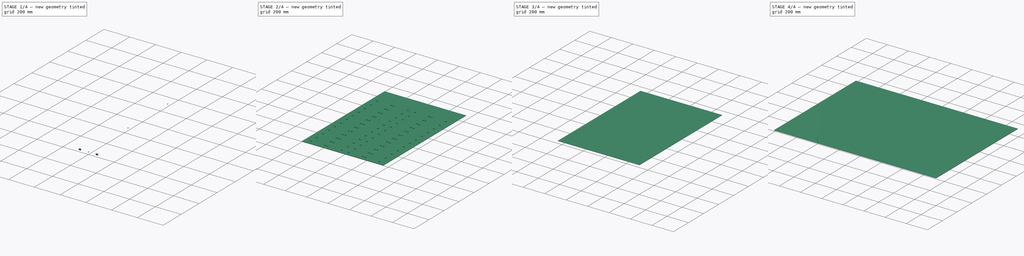
[diagram: build sequence overview — one tinted view per stage of 4, left to right]
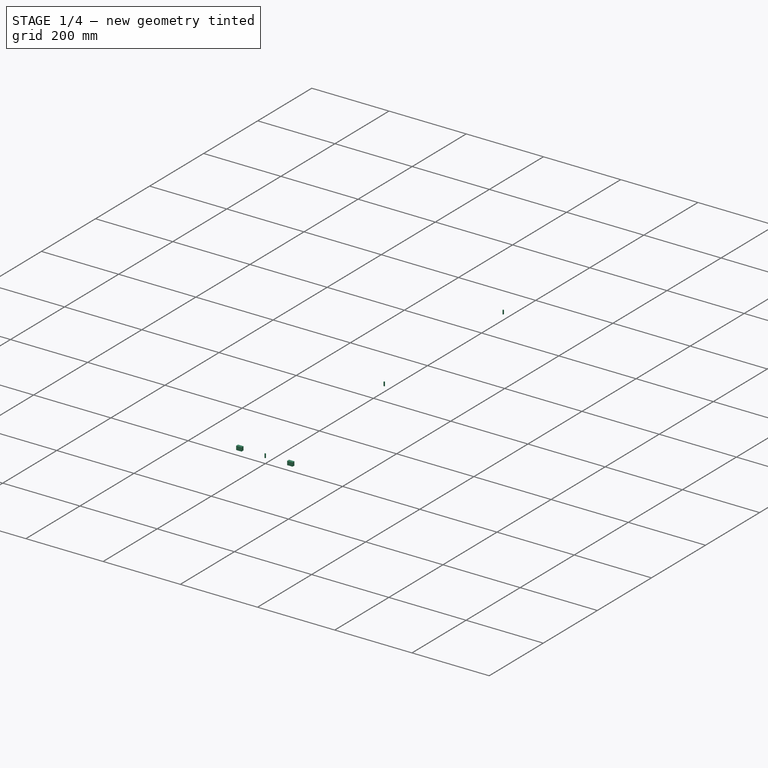
[diagram: stage 1 of 4 — iso view after this stage's code; geometry added in this stage tinted green]
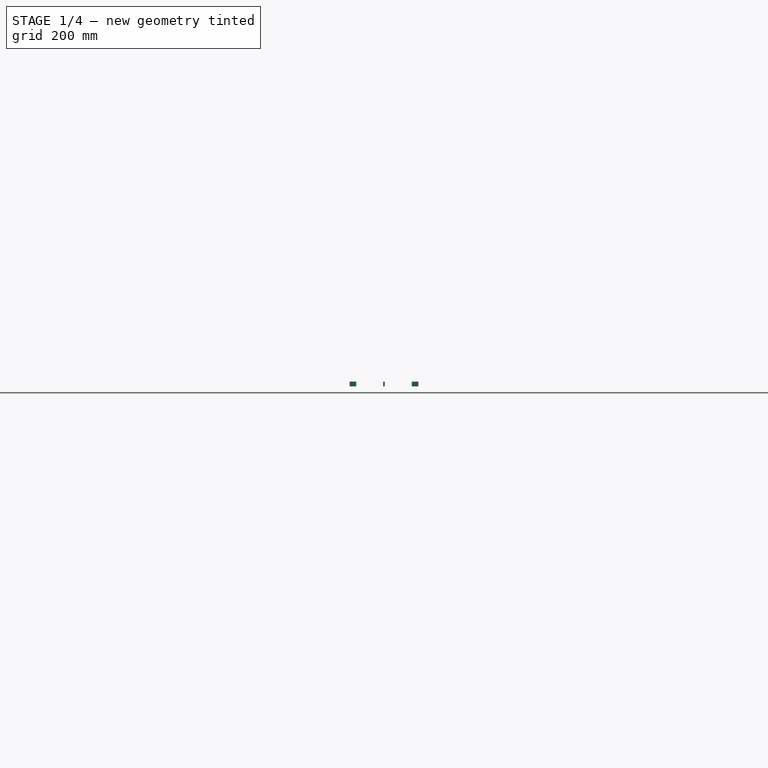
[diagram: stage 1 of 4 — front view after this stage's code; geometry added in this stage tinted green]
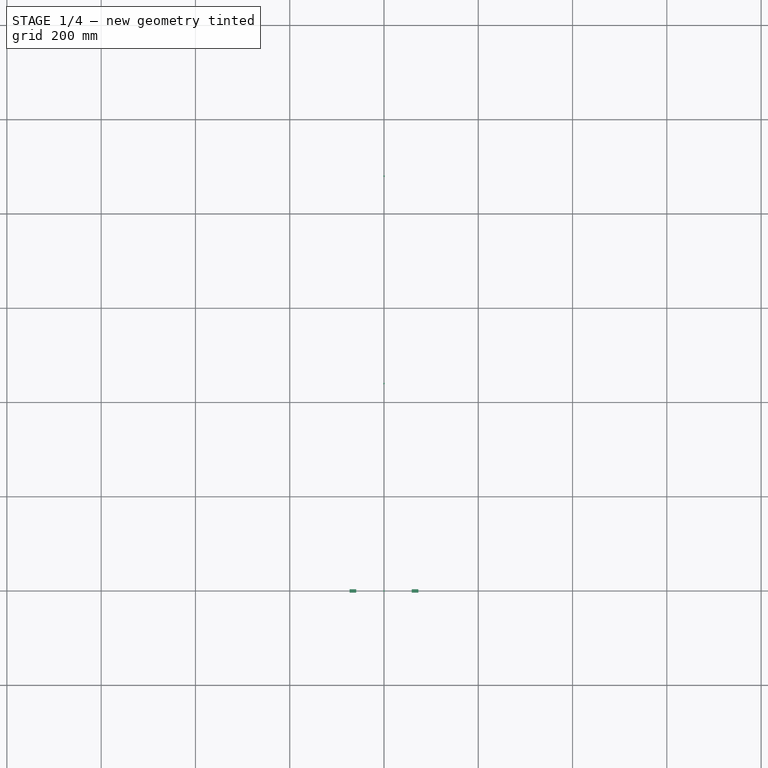
[diagram: stage 1 of 4 — top view after this stage's code; geometry added in this stage tinted green]
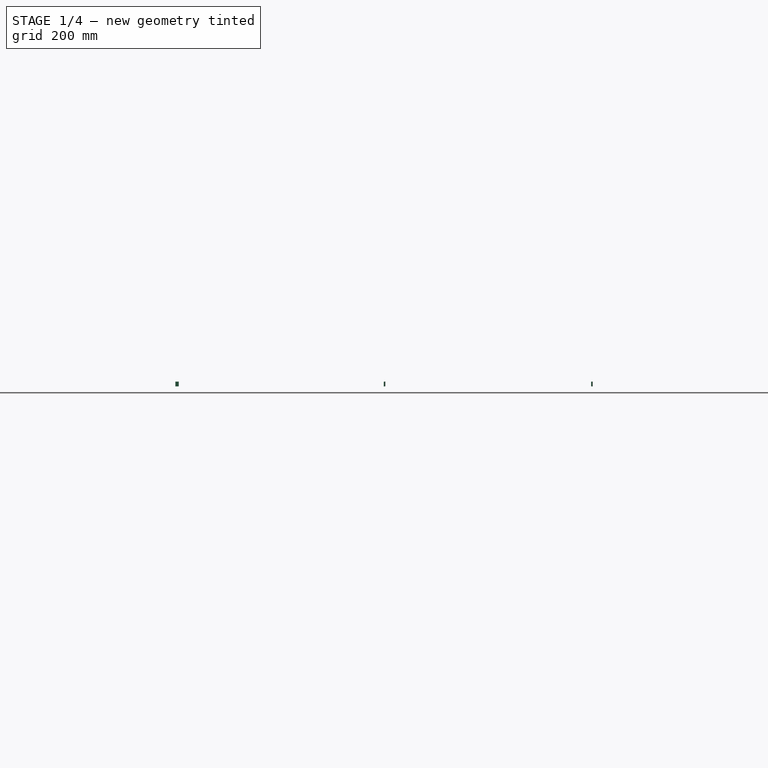
[diagram: stage 1 of 4 — right view after this stage's code; geometry added in this stage tinted green]
FCSTD DOCUMENT  (FreeCAD 0.22R36135 (Git))
Label: module_transport
License: All rights reserved
LicenseURL: http://en.wikipedia.org/wiki/All_rights_reserved
objects: Part::FeaturePython×11, Path::FeaturePython×4, Sketcher::SketchObject×3, App::DocumentObjectGroup×3, PartDesign::Body×2, App::Link×1, PartDesign::SubShapeBinder×1, PartDesign::Pad×1, Part::Extrusion×1, App::FeaturePython×1, Part::Part2DObjectPython×1, Part::Cylinder×1, Part::Compound×1, PartDesign::Boolean×1
note: 25 computed .brp shape members not serialized (recipe doc carries the construction recipe); baked Part::Feature solids carry a one-line shape summary decoded from their .brp
EXTERNAL_REF file=module.FCStd obj=Sketch

FEATURE [PartDesign::Body] Body001
  Origin = -> Origin001
FEATURE [Part::FeaturePython] Clone  label="module_holes001"  # Draft clone (typed FeaturePython)
  AttacherType = Attacher::AttachEngine3D
  Fuse = false
  Objects = -> [Link]
  Scale = (1,1,1)
FEATURE [Sketcher::SketchObject] Sketch001
  ExternalGeometry = -> [Clone]
  FullyConstrained = true
  sketch-geometry (10):
    g0: LineSegment StartX=-73 StartY=-3.5 StartZ=0 EndX=-59 EndY=-3.5 EndZ=0
    g1: LineSegment StartX=-59 StartY=-3.5 StartZ=0 EndX=-59 EndY=3.5 EndZ=0
    g2: LineSegment StartX=-59 StartY=3.5 StartZ=0 EndX=-73 EndY=3.5 EndZ=0
    g3: LineSegment StartX=-73 StartY=3.5 StartZ=0 EndX=-73 EndY=-3.5 EndZ=0
    g4: GeomPoint X=-66 Y=0 Z=0
    g5: LineSegment StartX=73 StartY=-3.5 StartZ=0 EndX=59 EndY=-3.5 EndZ=0
    g6: LineSegment StartX=59 StartY=-3.5 StartZ=0 EndX=59 EndY=3.5 EndZ=0
    g7: LineSegment StartX=59 StartY=3.5 StartZ=0 EndX=73 EndY=3.5 EndZ=0
    g8: LineSegment StartX=73 StartY=3.5 StartZ=0 EndX=73 EndY=-3.5 EndZ=0
    g9: GeomPoint X=66 Y=4e-16 Z=0
  constraints (24):
    c: Coincident(g0,g1)
    c: Coincident(g1,g2)
    c: Coincident(g2,g3)
    c: Coincident(g3,g0)
    c: Horizontal(g0)
    c: Horizontal(g2)
    c: Vertical(g1)
    c: Vertical(g3)
    c: Symmetric(g2,g0,g4)
    c: PointOnObject(g4,g-1)
    c: Coincident(g5,g6)
    c: Coincident(g6,g7)
    c: Coincident(g7,g8)
    c: Coincident(g8,g5)
    c: Horizontal(g5)
    c: Horizontal(g7)
    c: Vertical(g6)
    c: Vertical(g8)
    c: Symmetric(g7,g5,g9)
    c: Symmetric(g1,g6,g-2)
    c: Symmetric(g0,g5,g-2)
    c: PointOnObject(g-4,g0)
    c: DistanceX(g-4,g0) = 0.5
    c: DistanceX(g0,g-3) = 0.5
FEATURE [Part::Extrusion] Extrude
  Base = -> Sketch001
  Dir = (0,0,1)
  DirMode = 2
  FaceMakerClass = Part::FaceMakerBullseye
  LengthFwd = 10
  LengthRev = 0
  Solid = true
  Symmetric = false
FEATURE [Path::FeaturePython] __175mm_Endmill  label="3.175mm Endmill001"  # Path/CAM operation (typed FeaturePython)
  HorizFeed = 33.3333
  HorizRapid = 0
  SpindleDir = 0
  SpindleSpeed = 18000
  Tool = -> ToolBit
  ToolNumber = 1
  VertFeed = 16.6667
  VertRapid = 0
  expr: HorizRapid = SetupSheet.HorizRapid
  expr: VertRapid = SetupSheet.VertRapid
FEATURE [App::DocumentObjectGroup] Tools
  Group = -> [__175mm_Endmill]
FEATURE [Part::Part2DObjectPython] Rectangle  # Draft 2D object (typed FeaturePython)
  Area = 0
  ChamferSize = 0
  Columns = 1
  FilletRadius = 0
  Height = 200
  Length = 200
  MakeFace = false
  Rows = 1
FEATURE [Sketcher::SketchObject] Sketch002
  FullyConstrained = false
  sketch-geometry (2):
    g0: LineSegment StartX=0 StartY=1101.6 StartZ=0 EndX=1528.9 EndY=1101.6 EndZ=0
    g1: LineSegment StartX=761.6 StartY=1101.6 StartZ=0 EndX=761.6 EndY=0 EndZ=0
  constraints (4):
    c: PointOnObject(g0,g-2)
    c: Horizontal(g0)
    c: PointOnObject(g1,g0)
    c: PointOnObject(g1,g-1)
FEATURE [Path::FeaturePython] Engrave  # Path/CAM operation (typed FeaturePython)
  Active = true
  BaseShapes = -> [Sketch002]
  ClearanceHeight = 44
  CoolantMode = 0
  CycleTime = 00:10:52
  FinalDepth = 0
  OpFinalDepth = -3
  OpStartDepth = 3
  OpStockZMax = 4
  OpStockZMin = 0
  OpToolDiameter = 3.17
  SafeHeight = 7
  StartDepth = 20
  StartVertex = 0
  StepDown = 6
  ToolController = -> __175mm_Endmill
  expr: ClearanceHeight = OpStockZMax + SetupSheet.ClearanceHeightOffset
  expr: FinalDepth = 0
  expr: SafeHeight = <<Profile>>.SafeHeight
  expr: StartDepth = <<Profile>>.StartDepth
  expr: StepDown = <<Profile>>.StepDown
FEATURE [Part::FeaturePython] LinearArray002  # WARN: FeaturePython — macro-defined, semantics opaque (R4)
  Alignment = 0
  CellStart = A1
  Count = 3
  Dir = (0,1,0)
  DirIsDriven = true
  DistributionLaw = 0
  DrivenProperty = 1
  EndInclusive = true
  ExposePlacement = false
  GeneratorMode = 0
  MarkerShape = 1
  MarkerSize = 0
  NumElements = 3
  OrientMode = 1
  Point = (0,0,0)
  PointIsDriven = true
  Reverse = false
  SpanEnd = 880
  SpanStart = 0
  Step = 440
  Type = lattice2LinearArray.LinearArray
  VSGVersion = 1
  Values = 0.0 | 440.0 | 880.0
  ValuesSource = 2
  isLattice = 1
FEATURE [Part::Cylinder] Cylinder
  Angle = 360
  AttacherType = Attacher::AttachEngine3D
  FirstAngle = 0
  Height = 10
  Radius = 1.6
  SecondAngle = 0
FEATURE [Part::FeaturePython] Populate002  label="Populate LinearArray002 with Cylinder"  # WARN: FeaturePython — macro-defined, semantics opaque (R4)
  Copying = 0
  ExposePlacement = false
  MarkerShape = 1
  MarkerSize = 0
  NumElements = 0
  Object = -> Cylinder
  OutputCompounding = 1
  PlacementsTo = -> LinearArray002
  Referencing = 0
  Type = lattice2PopulateCopies.LatticePopulateCopies
  isLattice = 0
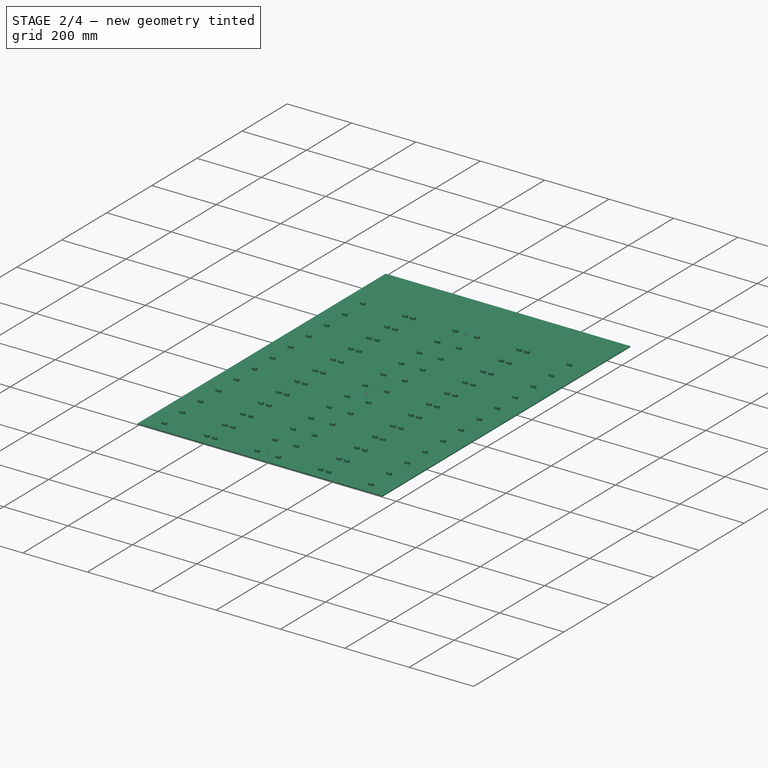
[diagram: stage 2 of 4 — iso view after this stage's code; geometry added in this stage tinted green]
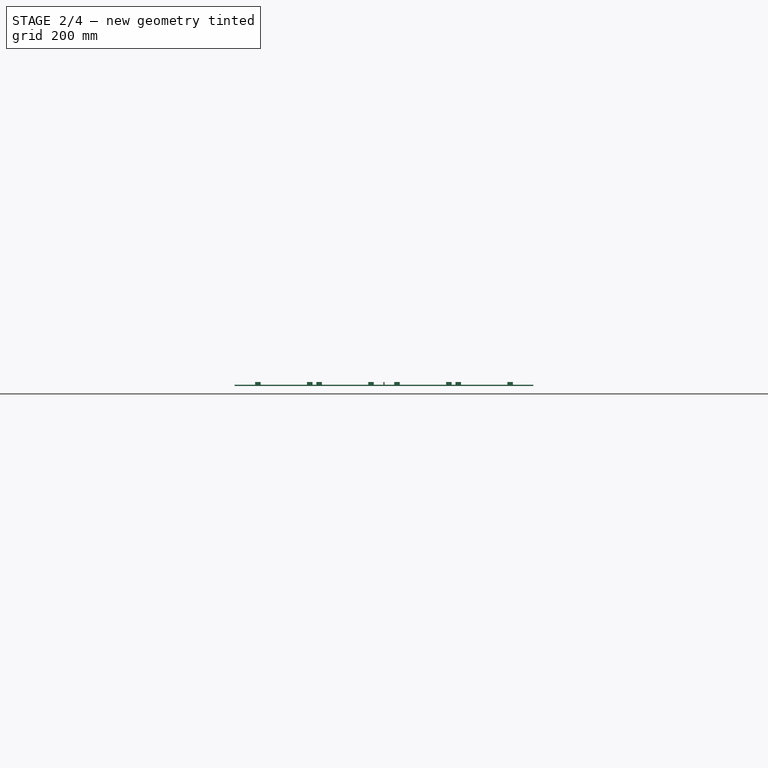
[diagram: stage 2 of 4 — front view after this stage's code; geometry added in this stage tinted green]
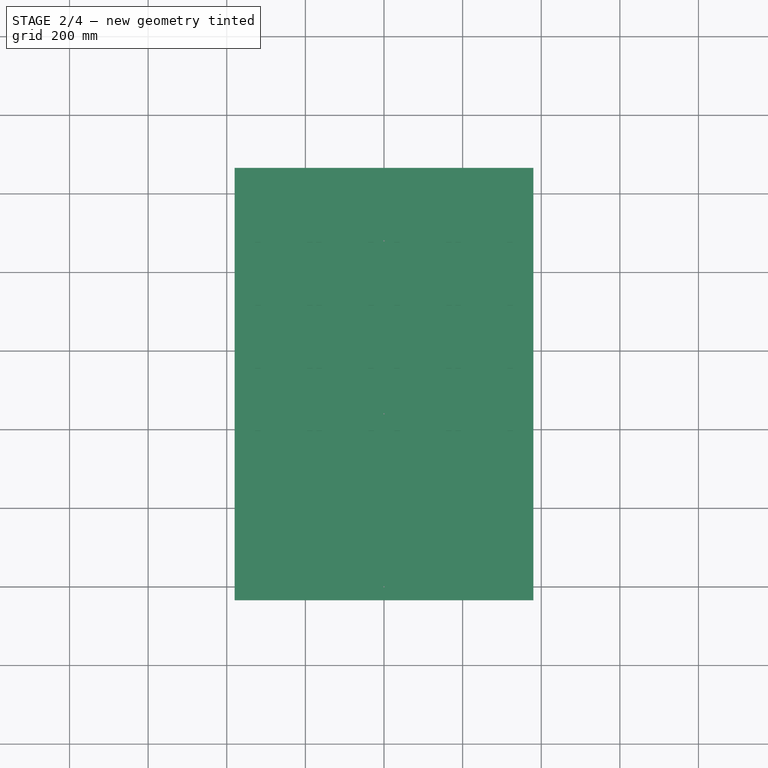
[diagram: stage 2 of 4 — top view after this stage's code; geometry added in this stage tinted green]
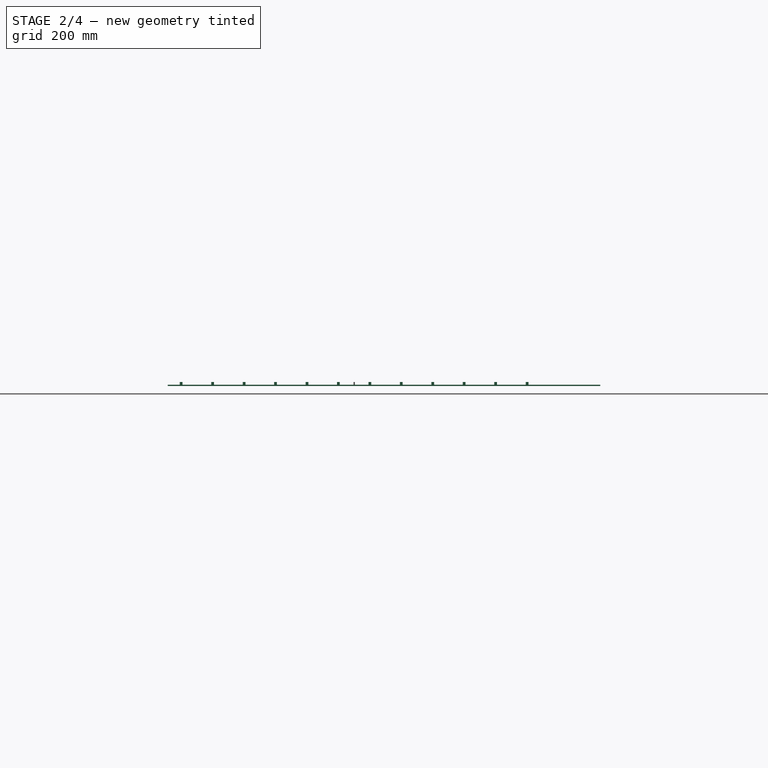
[diagram: stage 2 of 4 — right view after this stage's code; geometry added in this stage tinted green]
FEATURE [App::Link] Link  label="module_holes"
  LinkedObject = -> <external module.FCStd>#Sketch
FEATURE [Part::FeaturePython] LinearArray  # WARN: FeaturePython — macro-defined, semantics opaque (R4)
  Alignment = 0
  CellStart = A1
  Count = 4
  Dir = (1,0,0)
  DirIsDriven = true
  DistributionLaw = 0
  DrivenProperty = 1
  EndInclusive = true
  ExposePlacement = false
  GeneratorMode = 1
  MarkerShape = 1
  MarkerSize = 0
  NumElements = 4
  OrientMode = 1
  Point = (0,0,0)
  PointIsDriven = true
  Reverse = false
  SpanEnd = 468
  SpanStart = 0
  Step = 156
  Type = lattice2LinearArray.LinearArray
  VSGVersion = 1
  Values = -255.0 | -99.0 | 99.0 | 255.0
  ValuesSource = 0
  isLattice = 1
  expr: SpanEnd = Step * (Count - 1)
  expr: Step = 146 + 10
FEATURE [Part::FeaturePython] LinearArray001  # WARN: FeaturePython — macro-defined, semantics opaque (R4)
  Alignment = 0
  CellStart = A1
  Count = 12
  Dir = (0,1,0)
  DirIsDriven = true
  DistributionLaw = 0
  DrivenProperty = 1
  EndInclusive = true
  ExposePlacement = false
  GeneratorMode = 1
  MarkerShape = 1
  MarkerSize = 0
  NumElements = 12
  OrientMode = 0
  Point = (0,0,0)
  PointIsDriven = true
  Reverse = false
  SpanEnd = 100
  SpanStart = 0
  Step = 80
  Type = lattice2LinearArray.LinearArray
  VSGVersion = 1
  Values = 0.0 | 80.0 | 160.0 | 240.0 | 320.0 | 400.0 | 480.0 | 560.0 | 640.0 | 720.0 | 800.0 | 880.0
  ValuesSource = 2
  isLattice = 1
FEATURE [Part::FeaturePython] Populate  label="Populate LinearArray001 with LinearArray"  # WARN: FeaturePython — macro-defined, semantics opaque (R4)
  Copying = 0
  ExposePlacement = false
  MarkerShape = 1
  MarkerSize = 0
  NumElements = 48
  Object = -> LinearArray
  OutputCompounding = 0
  PlacementsTo = -> LinearArray001
  Referencing = 0
  Type = lattice2PopulateCopies.LatticePopulateCopies
  isLattice = 1
FEATURE [Sketcher::SketchObject] Sketch
  FullyConstrained = true
  sketch-geometry (5):
    g0: LineSegment StartX=-380 StartY=-34 StartZ=0 EndX=380 EndY=-34 EndZ=0
    g1: LineSegment StartX=380 StartY=-34 StartZ=0 EndX=380 EndY=1066 EndZ=0
    g2: LineSegment StartX=380 StartY=1066 StartZ=0 EndX=-380 EndY=1066 EndZ=0
    g3: LineSegment StartX=-380 StartY=1066 StartZ=0 EndX=-380 EndY=-34 EndZ=0
    g4: GeomPoint X=0 Y=516 Z=0
  constraints (13):
    c: Coincident(g0,g1)
    c: Coincident(g1,g2)
    c: Coincident(g2,g3)
    c: Coincident(g3,g0)
    c: Horizontal(g0)
    c: Horizontal(g2)
    c: Vertical(g1)
    c: Vertical(g3)
    c: DistanceX(g0,g0) = 760
    c: DistanceY(g3,g3) = 1100
    c: DistanceY(g0) = -34
    c: PointOnObject(g4,g-2)
    c: Symmetric(g0,g1,g4)
FEATURE [PartDesign::SubShapeBinder] Binder
  BindCopyOnChange = 0
  BindMode = 0
  ClaimChildren = true
  Context = -> Body [Binder.]
  Fuse = false
  MakeFace = true
  OffsetFill = false
  OffsetIntersection = false
  OffsetJoinType = 0
  OffsetOpenResult = false
  PartialLoad = false
  Relative = true
  Support = -> [Sketch]
  _Version = 2
FEATURE [PartDesign::Pad] Pad
  Direction = (0,0,1)
  Length = 3
  Length2 = 10
  Profile = -> Binder
  Suppressed = false
  Type = 0
FEATURE [Part::FeaturePython] Populate001  label="Populate Populate LinearArray001 with LinearArray with module_holes"  # WARN: FeaturePython — macro-defined, semantics opaque (R4)
  Copying = 0
  ExposePlacement = false
  MarkerShape = 1
  MarkerSize = 0
  NumElements = 0
  Object = -> Extrude
  OutputCompounding = 1
  PlacementsTo = -> Populate
  Referencing = 0
  Type = lattice2PopulateCopies.LatticePopulateCopies
  isLattice = 0
FEATURE [Part::Compound] Compound
  Links = -> [Populate001,Populate002]
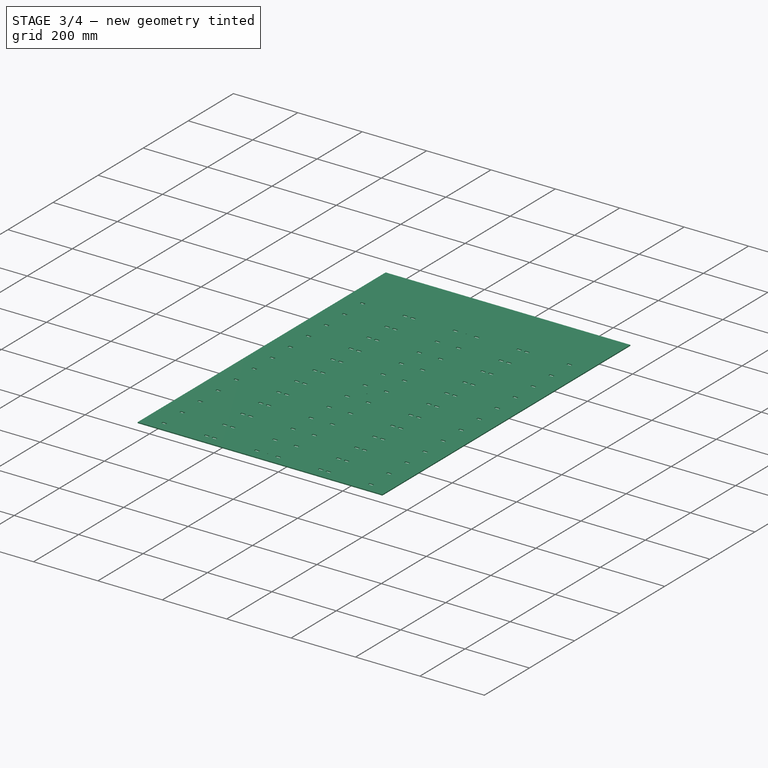
[diagram: stage 3 of 4 — iso view after this stage's code; geometry added in this stage tinted green]
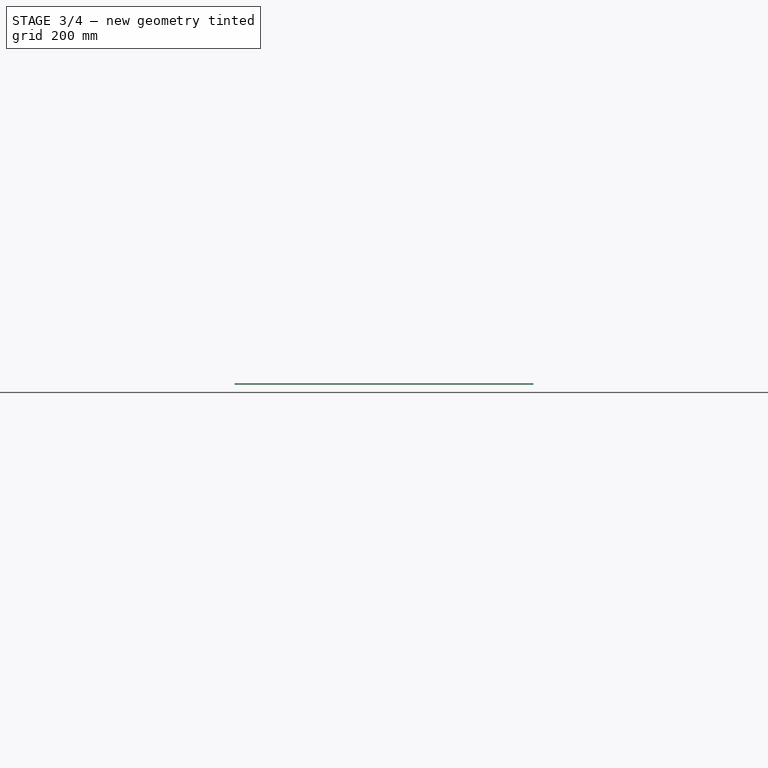
[diagram: stage 3 of 4 — front view after this stage's code; geometry added in this stage tinted green]
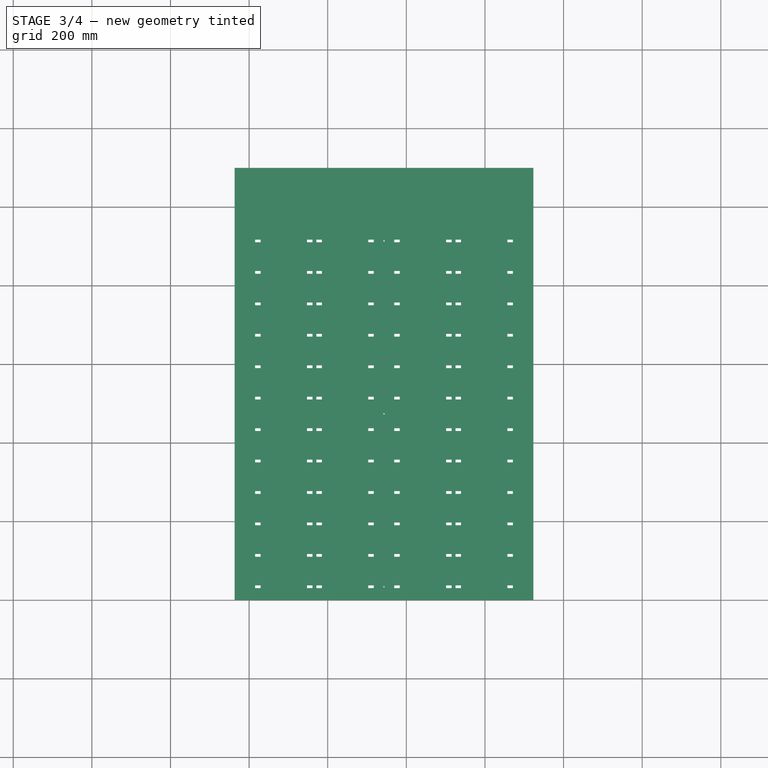
[diagram: stage 3 of 4 — top view after this stage's code; geometry added in this stage tinted green]
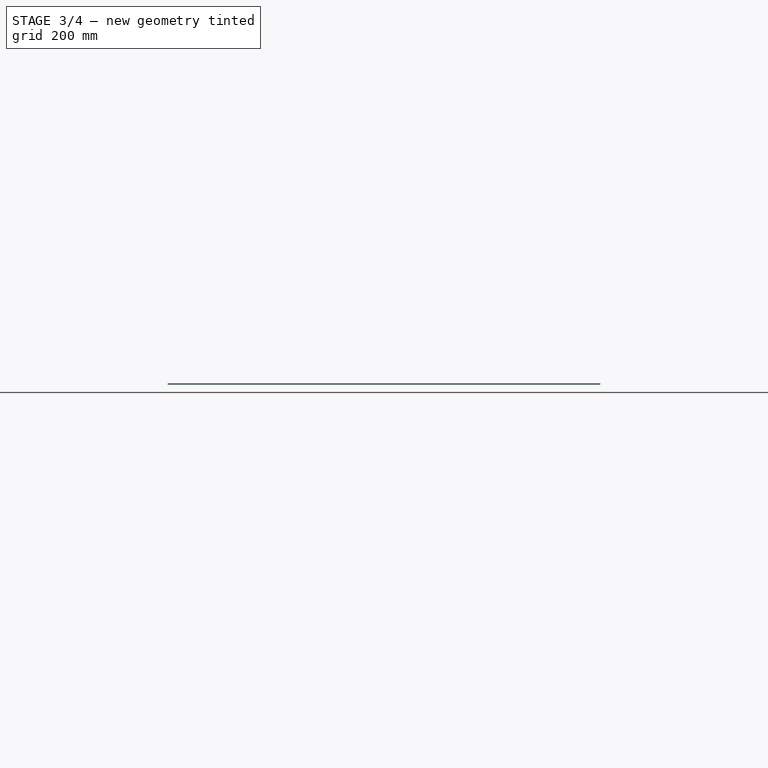
[diagram: stage 3 of 4 — right view after this stage's code; geometry added in this stage tinted green]
FEATURE [PartDesign::Boolean] Boolean
  BaseFeature = -> Pad
  Group = -> [Compound]
  Suppressed = false
  Type = 1
  UsePlacement = false
FEATURE [Part::FeaturePython] Clone002  label="Model-Body001"  # Draft clone (typed FeaturePython)
  AttacherType = Attacher::AttachEngine3D
  Fuse = false
  Objects = -> [Body]
  PathResource = Model
  Placement = pos=(1143.2,34,0) rot=(0,0,1;0rad)
  Scale = (1,1,1)
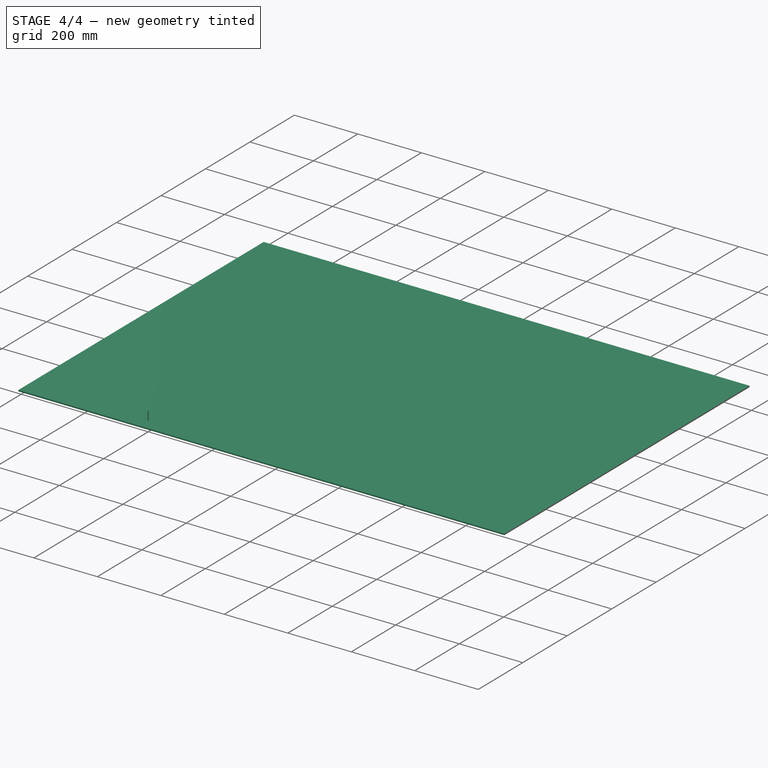
[diagram: stage 4 of 4 — iso view after this stage's code; geometry added in this stage tinted green]
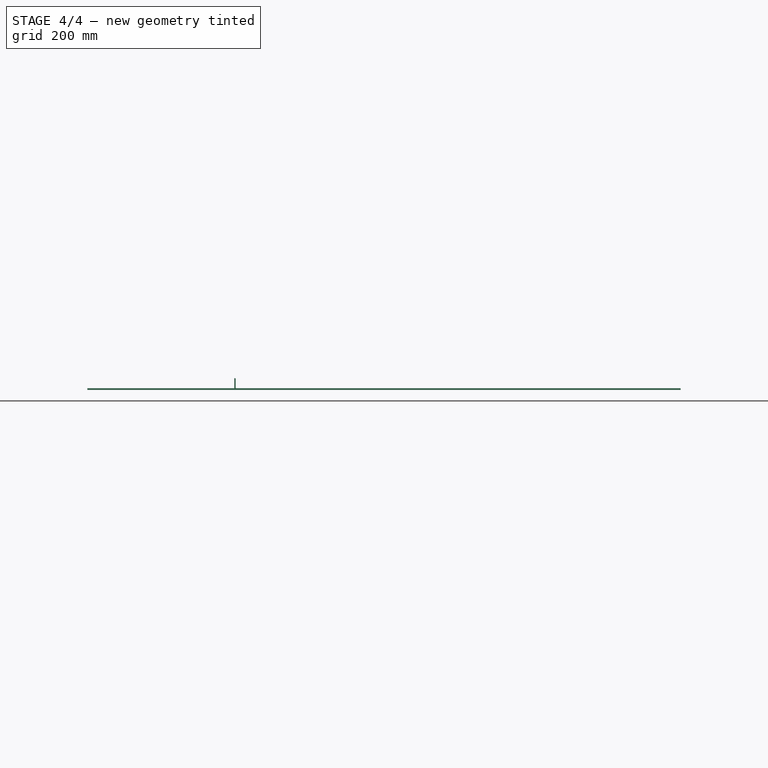
[diagram: stage 4 of 4 — front view after this stage's code; geometry added in this stage tinted green]
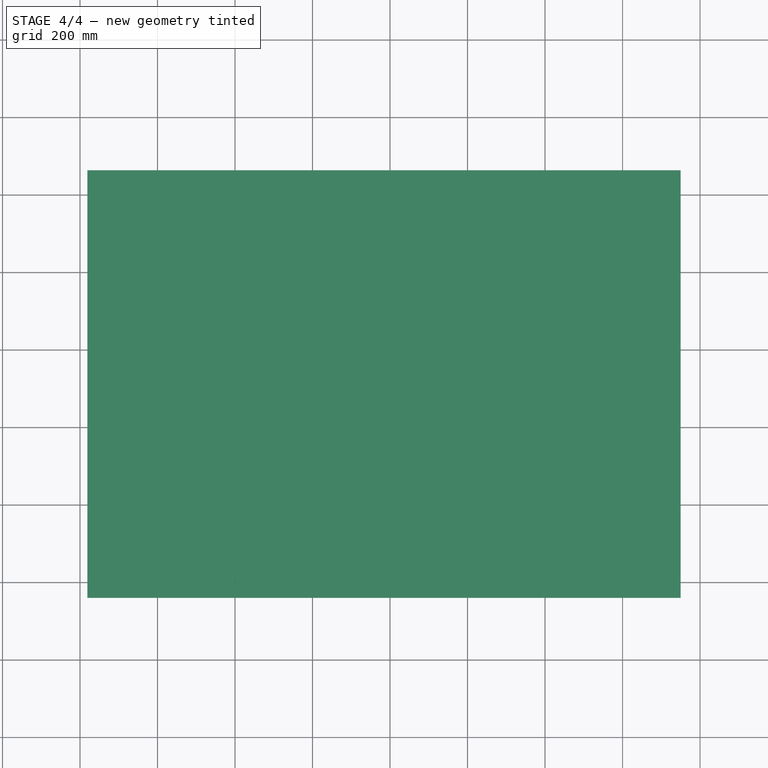
[diagram: stage 4 of 4 — top view after this stage's code; geometry added in this stage tinted green]
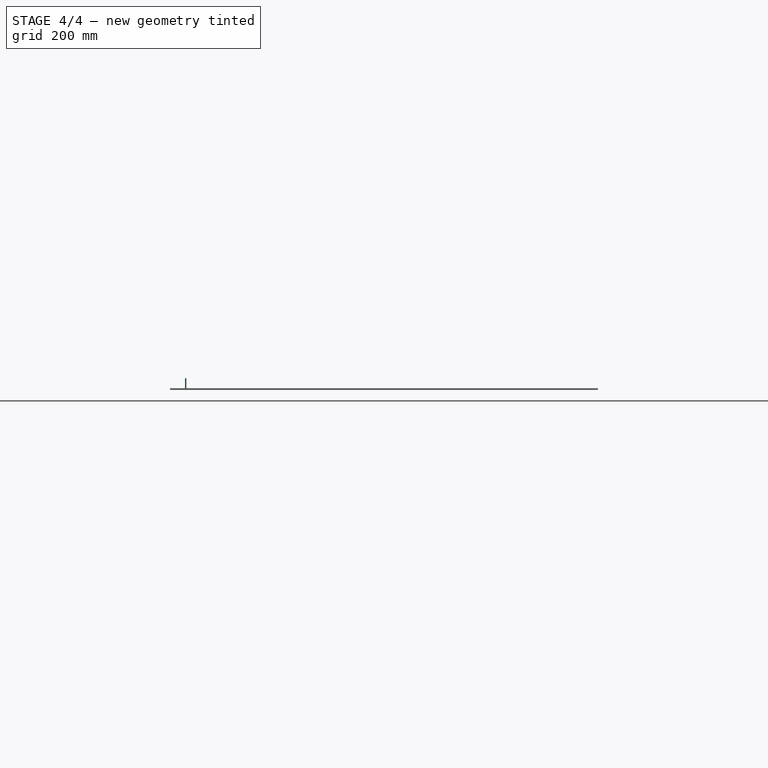
[diagram: stage 4 of 4 — right view after this stage's code; geometry added in this stage tinted green]
FEATURE [App::FeaturePython] SetupSheet  # Path/CAM operation (typed FeaturePython)
  ClearanceHeightExpression = OpStockZMax+SetupSheet.ClearanceHeightOffset
  ClearanceHeightOffset = 40
  CoolantMode = 0
  CoolantModes = None | Flood | Mist
  FinalDepthExpression = OpFinalDepth
  HorizRapid = 0
  ProfileDirection = 1
  ProfileprocessCircles = true
  ProfileprocessHoles = true
  ProfileprocessPerimeter = true
  SafeHeightExpression = OpStockZMax+SetupSheet.SafeHeightOffset
  SafeHeightOffset = 3
  StartDepthExpression = OpStartDepth
  StepDownExpression = OpToolDiameter
  VertRapid = 0
FEATURE [Part::FeaturePython] ToolBit  label="3.175mm Endmill"  # Path/CAM toolbit (typed FeaturePython)
  BitPropertyNames = Chipload | CuttingEdgeHeight | Diameter | Flutes | Length | Material | ShankDiameter | SpindleDirection
  BitShape = <path>
  Chipload = 0
  CuttingEdgeHeight = 30
  Diameter = 3.17
  Flutes = 0
  Length = 10
  Material = 0
  ShankDiameter = 3
  ShapeName = endmill
  SpindleDirection = 0
FEATURE [PartDesign::Body] Body
  Group = -> [Binder,Pad,Boolean]
  Origin = -> Origin
  Tip = -> Boolean
FEATURE [Part::FeaturePython] Clone001  label="Model-Body"  # Draft clone (typed FeaturePython)
  AttacherType = Attacher::AttachEngine3D
  Fuse = false
  Objects = -> [Body]
  PathResource = Model
  Placement = pos=(380,34,0) rot=(0,0,1;0rad)
  Scale = (1,1,1)
FEATURE [App::DocumentObjectGroup] Model
  Group = -> [Clone001,Clone002,Sketch002]
FEATURE [Part::FeaturePython] Stock  # WARN: FeaturePython — macro-defined, semantics opaque (R4)
  Base = -> Model
  ExtXneg = 1
  ExtXpos = 1
  ExtYneg = 1
  ExtYpos = 1
  ExtZneg = 0
  ExtZpos = 1
  Placement = pos=(-380,-39,0) rot=(0,0,1;0rad)
  StockType = FromBase
FEATURE [Path::FeaturePython] Profile  # Path/CAM operation (typed FeaturePython)
  Active = true
  AreaParams:
    Tolerance = 1e-07
    FitArcs = True
    Simplify = False
    CleanDistance = 0.0
    Accuracy = 0.01
    Unit = 1.0
    MinArcPoints = 4
    MaxArcPoints = 100
    ClipperScale = 10000000.0
    Fill = 0
    Coplanar = 0
    Reorient = True
    Outline = False
    Explode = False
    OpenMode = 0
    Deflection = 0.01
    SubjectFill = 0
    ClipFill = 0
    Offset = -1.585
    ExtraPass = 0
    Stepover = 0.0
    LastStepover = 0.0
    JoinType = 0
    EndType = 0
    MiterLimit = 2.0
    RoundPrecision = 0.0
    PocketMode = 0
    ToolRadius = 1.0
    PocketExtraOffset = 0.0
    PocketStepover = 0.0
    PocketLastStepover = 0.0
    FromCenter = False
    Angle = 45.0
    AngleShift = 0.0
    Shift = 0.0
    Thicken = False
    SectionCount = -1
    Stepdown = 1.0
    SectionOffset = 0.0
    SectionTolerance = 1e-06
    SectionMode = 2
    Project = False
  Base = -> [Clone001,Clone002]
  ClearanceHeight = 44
  CoolantMode = 0
  CycleTime = 00:35:07
  Direction = 1
  FinalDepth = 0
  HandleMultipleFeatures = 0
  JoinType = 0
  MiterLimit = 0.1
  OffsetExtra = 0
  OpFinalDepth = 0
  OpStartDepth = 4
  OpStockZMax = 4
  OpStockZMin = 0
  OpToolDiameter = 3.17
  PathParams = {'orientation': 1, 'feedrate': 33.33333333333334, 'feedrate_v': 16.666666666666668, 'verbose': True, 'resume_height': 7.0, 'retraction': 44.0, 'return_end': True, 'preamble': False, 'start': Vector (1458.7850001999998, 35.9149999, 44.0)}
  SafeHeight = 7
  Side = 0
  SplitArcs = false
  StartDepth = 20
  StartPoint = (0,0,0)
  StepDown = 6
  ToolController = -> __175mm_Endmill
  UseComp = true
  UseStartPoint = false
  processCircles = true
  processHoles = true
  processPerimeter = false
  expr: ClearanceHeight = OpStockZMax + SetupSheet.ClearanceHeightOffset
  expr: FinalDepth = OpFinalDepth
  expr: SafeHeight = OpStockZMax + SetupSheet.SafeHeightOffset
  expr: StartDepth = 20
FEATURE [App::DocumentObjectGroup] Operations
  Group = -> [Profile,Engrave]
FEATURE [Path::FeaturePython] Job  # Path/CAM operation (typed FeaturePython)
  CycleTime = 00:45:59
  Fixtures = G54
  GeometryTolerance = 0.01
  JobType = 0
  LastPostProcessDate = 2024-02-29 12:52:33.281603
  LastPostProcessOutput = <userpath>/2CAF-B51C/module_transport.tap
  Model = -> Model
  Operations = -> Operations
  OrderOutputBy = 0
  PostProcessor = 3
  PostProcessorOutputFile = <userpath>/2CAF-B51C/%d.tap
  SetupSheet = -> SetupSheet
  SplitOutput = false
  Stock = -> Stock
  Tools = -> Tools
note: 1 file-system path scrubbed to <path> (originals preserved in the JSON sidecar)
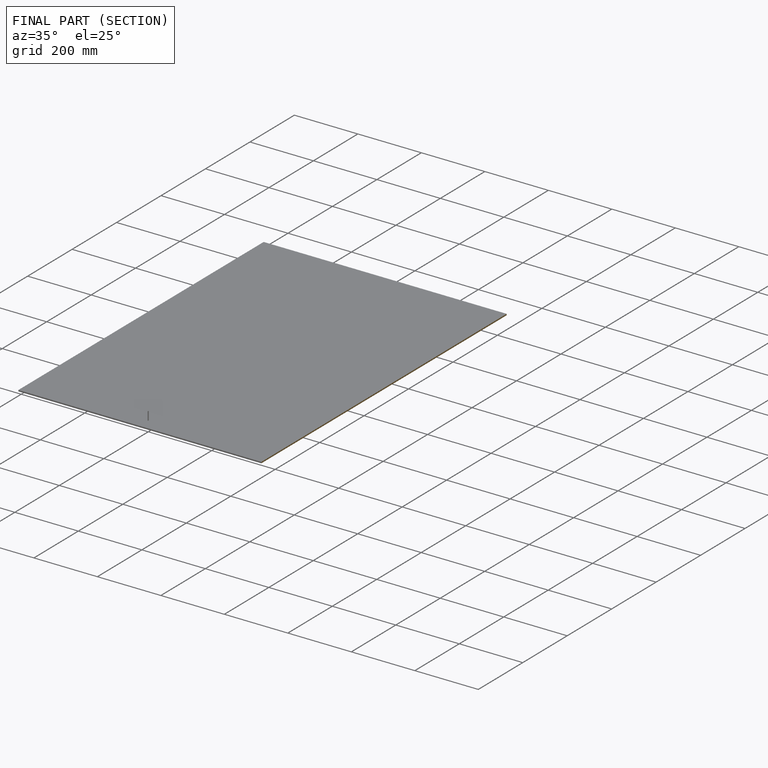
[diagram: finished part — half-section view (interior)]
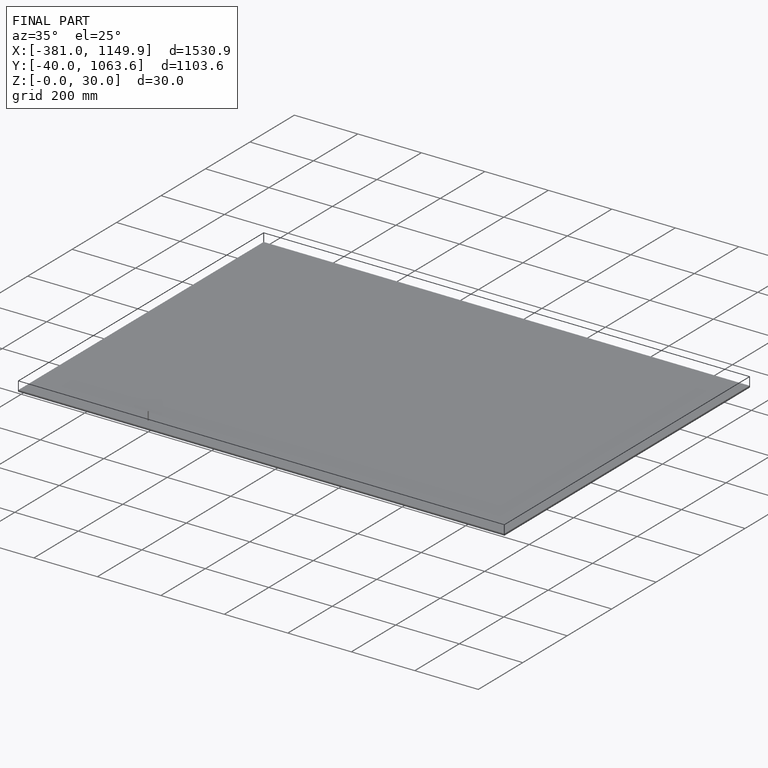
[diagram: finished part — iso view with bounding-box wireframe]
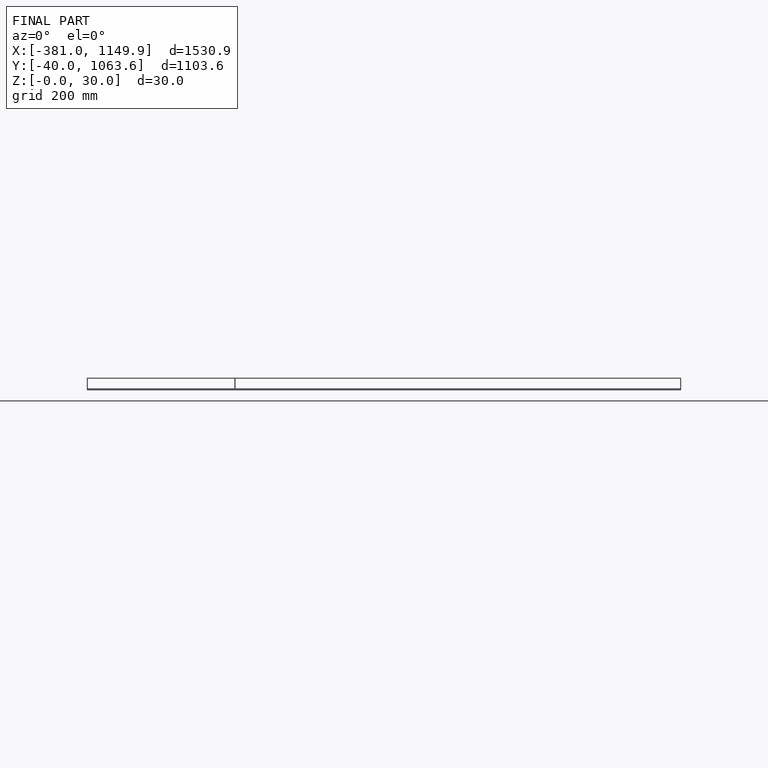
[diagram: finished part — front view with bounding-box wireframe]
